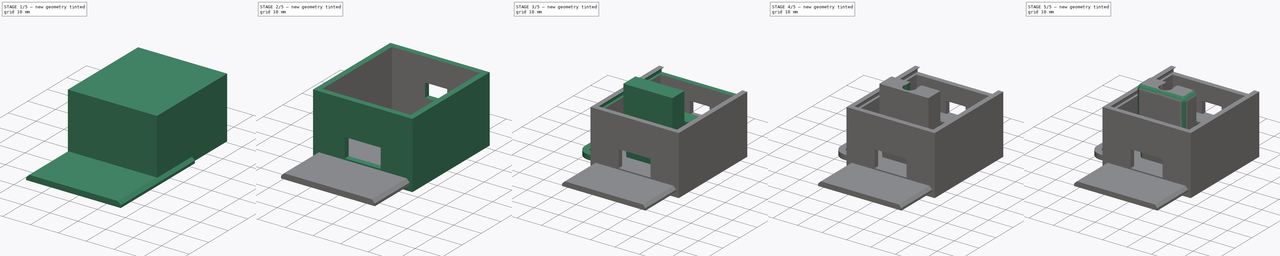
[diagram: build sequence overview — one tinted view per stage of 5, left to right]
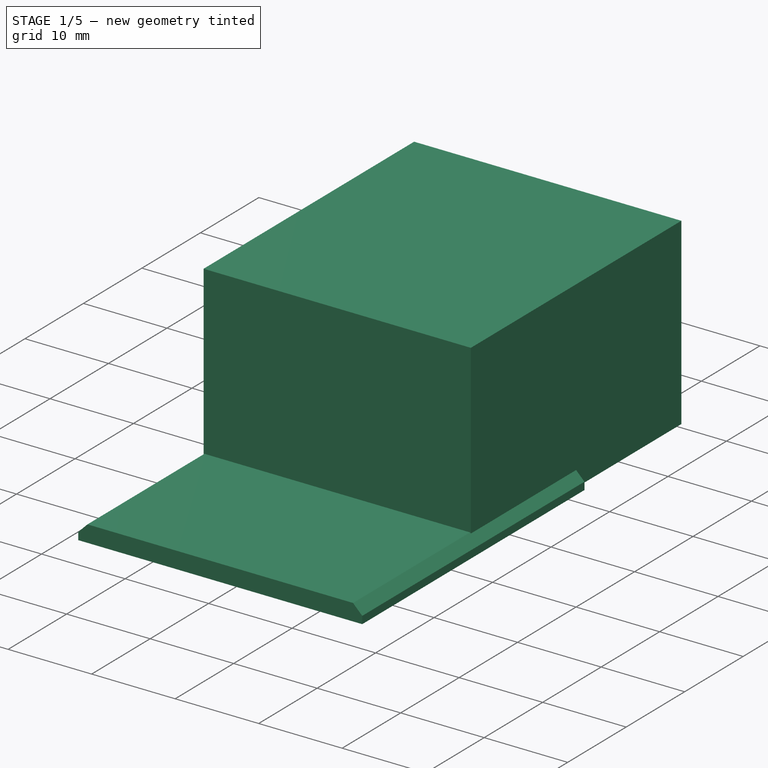
[diagram: stage 1 of 5 — iso view after this stage's code; geometry added in this stage tinted green]
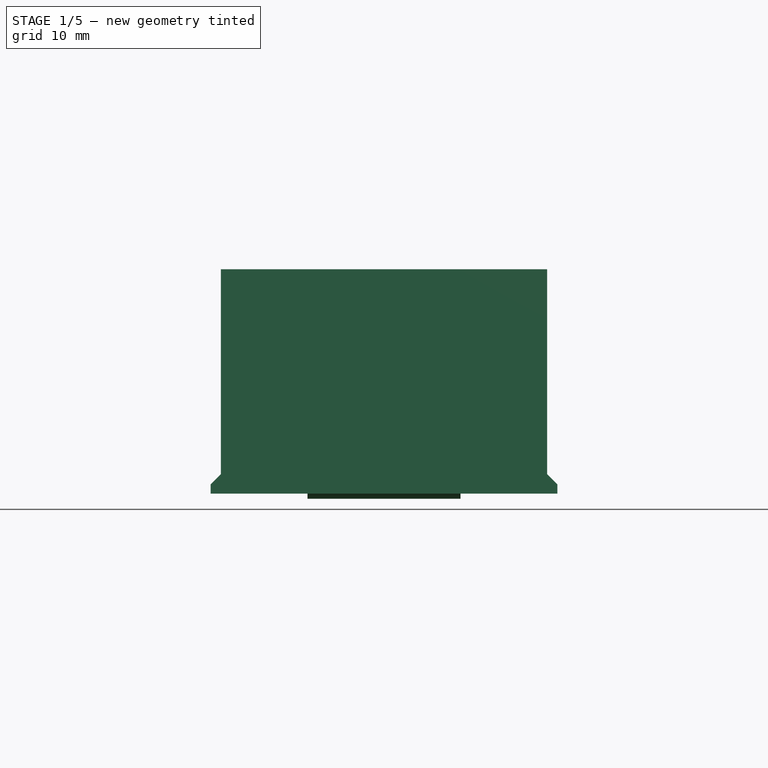
[diagram: stage 1 of 5 — front view after this stage's code; geometry added in this stage tinted green]
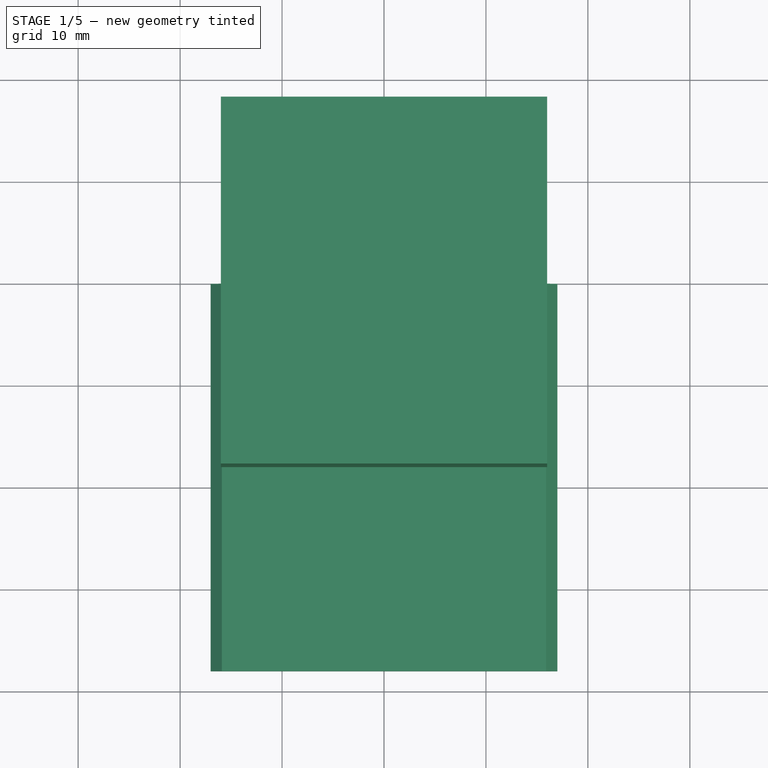
[diagram: stage 1 of 5 — top view after this stage's code; geometry added in this stage tinted green]
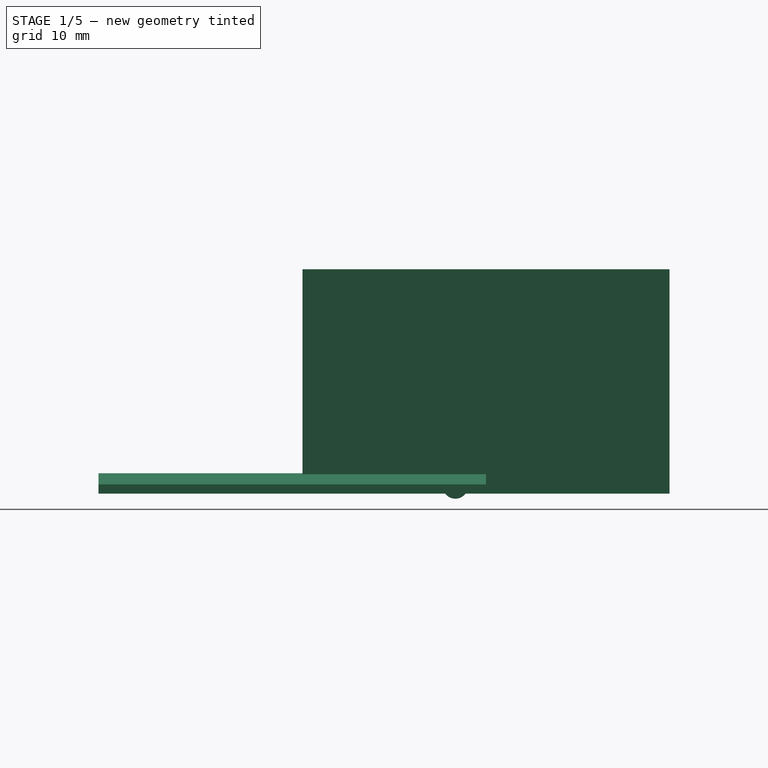
[diagram: stage 1 of 5 — right view after this stage's code; geometry added in this stage tinted green]
FCSTD DOCUMENT  (FreeCAD 1.0R39319 (Git))
Label: Samsung_IR_Holder
License: All rights reserved
LicenseURL: https://en.wikipedia.org/wiki/All_rights_reserved
objects: Sketcher::SketchObject×11, PartDesign::Pocket×6, PartDesign::Pad×5, PartDesign::Body×3, PartDesign::Chamfer×2, PartDesign::Fillet×1, PartDesign::Thickness×1, Measure::MeasureLength×1, App::DocumentObjectGroup×1
note: 70 computed .brp shape members not serialized (recipe doc carries the construction recipe); baked Part::Feature solids carry a one-line shape summary decoded from their .brp

FEATURE [PartDesign::Body] Body
  AllowCompound = false
  Group = -> [Sketch,Pad,Sketch001,Pocket,Sketch002,Pocket001,Sketch003,Pocket002,Fillet,Chamfer,Chamfer001]
  Origin = -> Origin
  Tip = -> Chamfer001
FEATURE [Sketcher::SketchObject] Sketch005
  ArcFitTolerance = 1e-06
  AttachmentSupport = -> [XY_Plane001]
  FullyConstrained = true
  MakeInternals = false
  MapMode = 5
  sketch-geometry (5):
    g0: LineSegment StartX=-16 StartY=-18 StartZ=0 EndX=16 EndY=-18 EndZ=0
    g1: LineSegment StartX=16 StartY=-18 StartZ=0 EndX=16 EndY=18 EndZ=0
    g2: LineSegment StartX=16 StartY=18 StartZ=0 EndX=-16 EndY=18 EndZ=0
    g3: LineSegment StartX=-16 StartY=18 StartZ=0 EndX=-16 EndY=-18 EndZ=0
    g4: GeomPoint [constr] X=0 Y=0 Z=0
  constraints (12):
    c: Coincident(g0,g1)
    c: Coincident(g1,g2)
    c: Coincident(g2,g3)
    c: Coincident(g3,g0)
    c: Horizontal(g0)
    c: Horizontal(g2)
    c: Vertical(g1)
    c: Vertical(g3)
    c: Symmetric(g2,g0,g4)
    c: Distance(g1,g3) = 32
    c: Distance(g0,g2) = 36
    c: Coincident(g4,g-1)
FEATURE [PartDesign::Pad] Pad001
  Direction = (0,0,1)
  Length = 22
  Length2 = 10
  Profile = -> Sketch005
  ReferenceAxis = -> Sketch005 [N_Axis]
  Refine = true
  Suppressed = false
  Type = 0
FEATURE [PartDesign::Body] Body001  label="BoxBody"
  AllowCompound = false
  Group = -> [Sketch005,Pad001,Thickness,Sketch006,Pocket003,Sketch007,Pocket004,Sketch008,Pocket005,Sketch009,Pad002]
  Origin = -> Origin001
  Tip = -> Pad002
FEATURE [Measure::MeasureLength] Length  label="Length: 38,00 mm"
  Elements = -> [Body001]
  Length = 38
FEATURE [App::DocumentObjectGroup] Measurements
  Group = -> [Length]
FEATURE [Sketcher::SketchObject] Sketch010
  ArcFitTolerance = 1e-06
  AttachmentSupport = -> [XZ_Plane002]
  FullyConstrained = true
  MakeInternals = false
  MapMode = 5
  Placement = pos=(0,0,0) rot=(1,0,0;1.5708rad)
  sketch-geometry (8):
    g0: LineSegment StartX=-17 StartY=0 StartZ=0 EndX=17 EndY=0 EndZ=0
    g1: LineSegment StartX=-17 StartY=0 StartZ=0 EndX=-17 EndY=0.9 EndZ=0
    g2: LineSegment StartX=-17 StartY=0.9 StartZ=0 EndX=-15.9 EndY=2 EndZ=0
    g3: LineSegment StartX=-15.9 StartY=2 StartZ=0 EndX=15.9 EndY=2 EndZ=0
    g4: LineSegment StartX=15.9 StartY=2 StartZ=0 EndX=17 EndY=0.9 EndZ=0
    g5: LineSegment StartX=17 StartY=0.9 StartZ=0 EndX=17 EndY=0 EndZ=0
    g6: LineSegment [constr] StartX=-17 StartY=0.9 StartZ=0 EndX=-15.9 EndY=0.9 EndZ=0
    g7: LineSegment [constr] StartX=-15.9 StartY=0.9 StartZ=0 EndX=-15.9 EndY=2 EndZ=0
  constraints (20):
    c: Distance(g0) = 34
    c: PointOnObject(g0,g-1)
    c: Symmetric(g0,g0,g-1)
    c: Coincident(g0,g1)
    c: Vertical(g1)
    c: Coincident(g1,g2)
    c: Coincident(g2,g3)
    c: Coincident(g3,g4)
    c: Coincident(g4,g5)
    c: Coincident(g5,g0)
    c: Symmetric(g1,g4,g-2)
    c: Symmetric(g3,g2,g-2)
    c: DistanceY(g0,g2) = 2
    c: DistanceY(g1,g1) = 0.9
    c: Coincident(g1,g6)
    c: Horizontal(g6)
    c: Coincident(g6,g7)
    c: Coincident(g7,g2)
    c: Vertical(g7)
    c: Equal(g7,g6)
FEATURE [PartDesign::Pad] Pad003
  Direction = (0,-1,2e-16)
  Length = 38
  Length2 = 10
  Placement = pos=(0,0,0) rot=(1,0,0;1.5708rad)
  Profile = -> Sketch010
  ReferenceAxis = -> Sketch010 [N_Axis]
  Refine = true
  Suppressed = false
  Type = 0
FEATURE [Sketcher::SketchObject] Sketch011
  ArcFitTolerance = 1e-06
  AttachmentSupport = -> [YZ_Plane002]
  FullyConstrained = true
  MakeInternals = false
  MapMode = 5
  Placement = pos=(0,0,0) rot=(0.57735,0.57735,0.57735;2.0944rad)
  sketch-geometry (3):
    g0: LineSegment StartX=-4 StartY=0 StartZ=0 EndX=-2 EndY=0 EndZ=0
    g1: ArcOfCircle CenterX=-3 CenterY=0.75 CenterZ=0 NormalX=0 NormalY=0 NormalZ=1 AngleXU=0 Radius=1.25 StartAngle=3.78509 EndAngle=5.63968
    g2: LineSegment [constr] StartX=0 StartY=-0.5 StartZ=0 EndX=-5 EndY=-0.5 EndZ=0
  constraints (11):
    c: Horizontal(g0)
    c: Coincident(g1,g0)
    c: Coincident(g1,g0)
    c: Horizontal(g2)
    c: Tangent(g2,g1)
    c: DistanceX(g0,g0) = 2
    c: DistanceY(g2,g0) = 0.5
    c: DistanceX(g2,g2) = 5
    c: DistanceX(g0,g-1) = 2
    c: PointOnObject(g0,g-1)
    c: PointOnObject(g2,g-2)
FEATURE [PartDesign::Pad] Pad004
  BaseFeature = -> Pad003
  Direction = (1,0,0)
  Length = 15
  Length2 = 10
  Midplane = true
  Placement = pos=(0,0,0) rot=(1,0,0;1.5708rad)
  Profile = -> Sketch011
  ReferenceAxis = -> Sketch011 [N_Axis]
  Refine = true
  Suppressed = false
  Type = 0
FEATURE [PartDesign::Body] Body002  label="CoverBody"
  AllowCompound = false
  Group = -> [Sketch010,Pad003,Sketch011,Pad004]
  Origin = -> Origin002
  Tip = -> Pad004
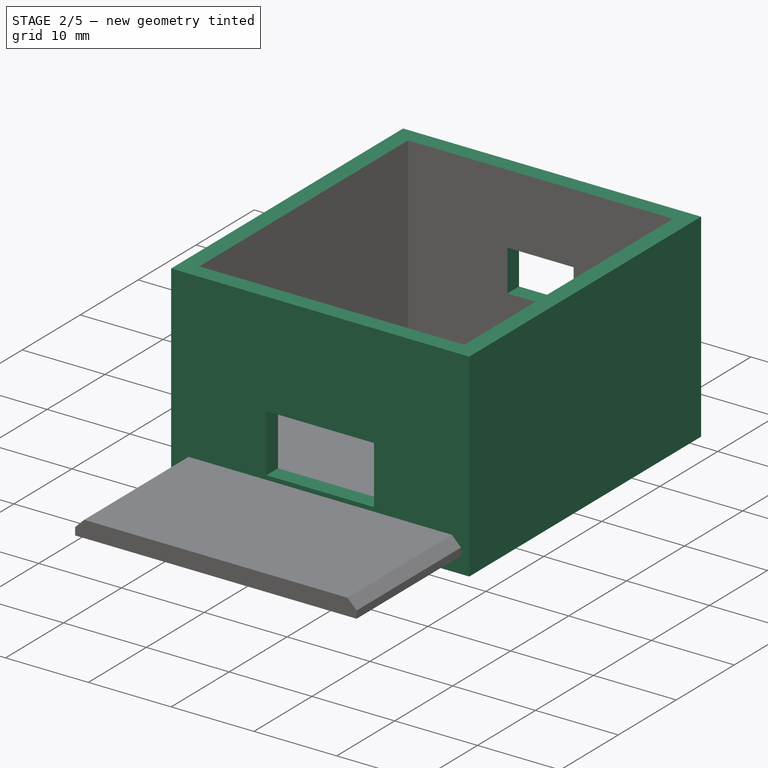
[diagram: stage 2 of 5 — iso view after this stage's code; geometry added in this stage tinted green]
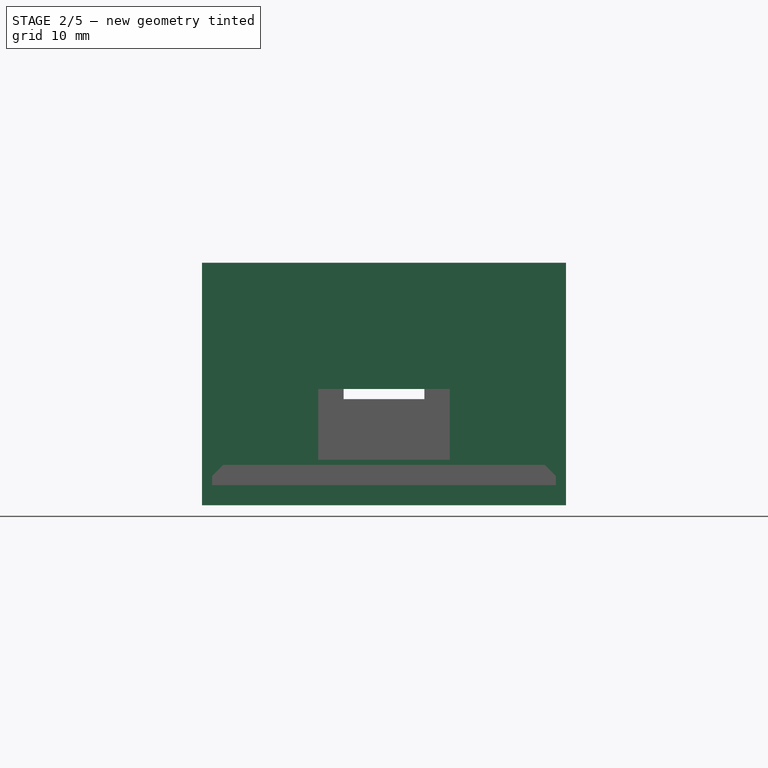
[diagram: stage 2 of 5 — front view after this stage's code; geometry added in this stage tinted green]
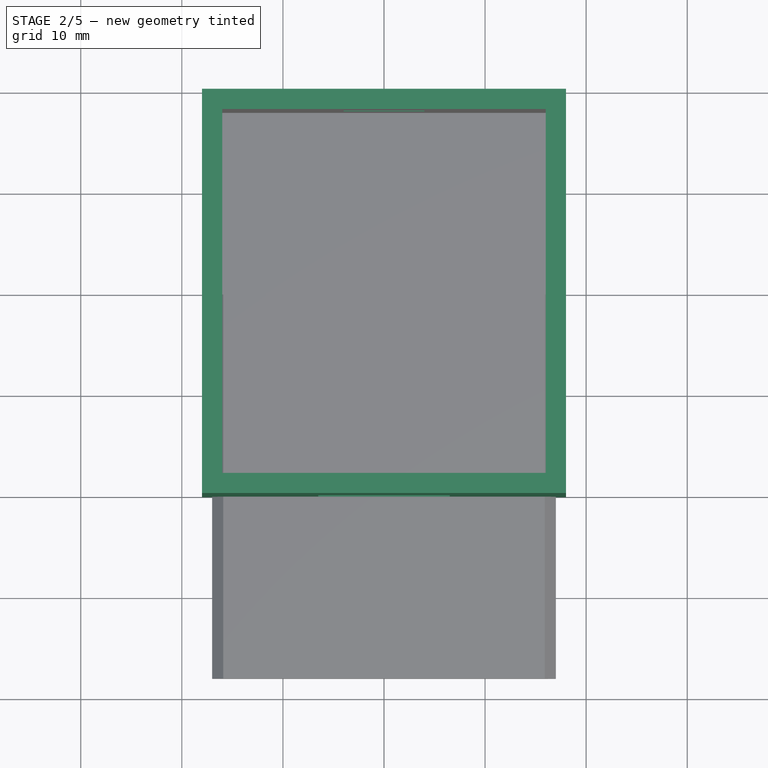
[diagram: stage 2 of 5 — top view after this stage's code; geometry added in this stage tinted green]
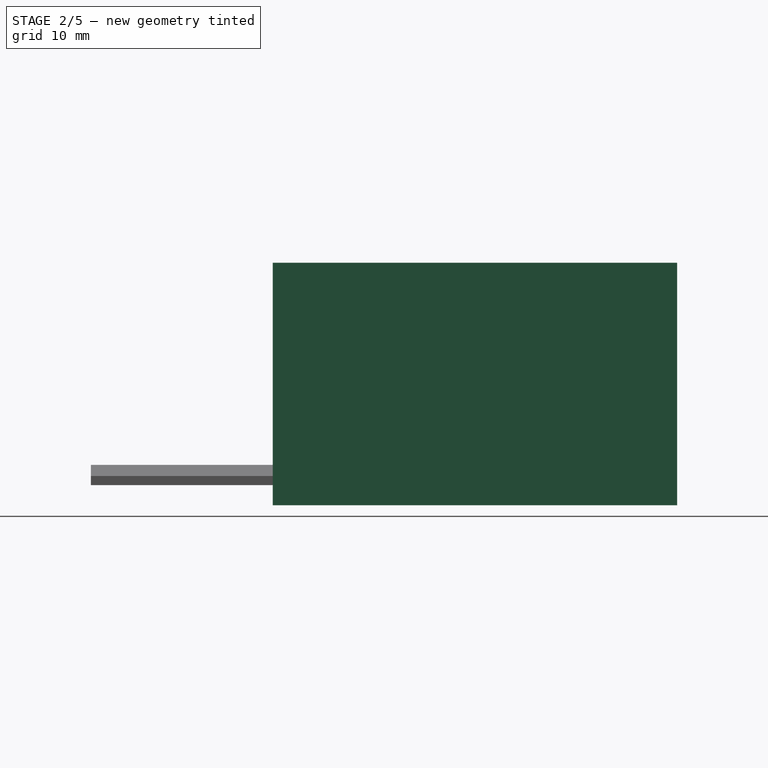
[diagram: stage 2 of 5 — right view after this stage's code; geometry added in this stage tinted green]
FEATURE [PartDesign::Thickness] Thickness
  Base = -> Pad001 [Face6]
  BaseFeature = -> Pad001
  Intersection = false
  Join = 1
  Mode = 0
  Refine = true
  SupportTransform = false
  Suppressed = false
  Value = 2
FEATURE [Sketcher::SketchObject] Sketch006
  ArcFitTolerance = 1e-06
  AttachmentSupport = -> [XZ_Plane001]
  FullyConstrained = true
  MakeInternals = false
  MapMode = 5
  Placement = pos=(0,0,0) rot=(1,0,0;1.5708rad)
  sketch-geometry (5):
    g0: LineSegment StartX=-6.5 StartY=9.5 StartZ=0 EndX=-6.5 EndY=2.5 EndZ=0
    g1: LineSegment StartX=-6.5 StartY=2.5 StartZ=0 EndX=6.5 EndY=2.5 EndZ=0
    g2: LineSegment StartX=6.5 StartY=2.5 StartZ=0 EndX=6.5 EndY=9.5 EndZ=0
    g3: LineSegment StartX=6.5 StartY=9.5 StartZ=0 EndX=-6.5 EndY=9.5 EndZ=0
    g4: GeomPoint [constr] X=0 Y=6 Z=0
  constraints (13):
    c: Coincident(g0,g1)
    c: Coincident(g1,g2)
    c: Coincident(g2,g3)
    c: Coincident(g3,g0)
    c: Vertical(g0)
    c: Vertical(g2)
    c: Horizontal(g1)
    c: Horizontal(g3)
    c: Symmetric(g2,g0,g4)
    c: PointOnObject(g4,g-2)
    c: DistanceY(g2,g2) = 7
    c: DistanceX(g3,g3) = 13
    c: DistanceY(g-1,g4) = 6
FEATURE [PartDesign::Pocket] Pocket003
  BaseFeature = -> Thickness
  Direction = (0,1,-2e-16)
  Length = 5
  Length2 = 5
  Profile = -> Sketch006
  ReferenceAxis = -> Sketch006 [N_Axis]
  Refine = true
  Reversed = true
  Suppressed = false
  Type = 1
FEATURE [Sketcher::SketchObject] Sketch007
  ArcFitTolerance = 1e-06
  AttachmentSupport = -> [XZ_Plane001]
  FullyConstrained = true
  MakeInternals = false
  MapMode = 5
  Placement = pos=(0,0,0) rot=(1,0,0;1.5708rad)
  sketch-geometry (5):
    g0: LineSegment StartX=-4 StartY=8.5 StartZ=0 EndX=4 EndY=8.5 EndZ=0
    g1: LineSegment StartX=4 StartY=8.5 StartZ=0 EndX=4 EndY=13.5 EndZ=0
    g2: LineSegment StartX=4 StartY=13.5 StartZ=0 EndX=-4 EndY=13.5 EndZ=0
    g3: LineSegment StartX=-4 StartY=13.5 StartZ=0 EndX=-4 EndY=8.5 EndZ=0
    g4: GeomPoint [constr] X=0 Y=11 Z=0
  constraints (13):
    c: Coincident(g0,g1)
    c: Coincident(g1,g2)
    c: Coincident(g2,g3)
    c: Coincident(g3,g0)
    c: Horizontal(g0)
    c: Horizontal(g2)
    c: Vertical(g1)
    c: Vertical(g3)
    c: Symmetric(g2,g0,g4)
    c: Distance(g1,g3) = 8
    c: Distance(g0,g2) = 5
    c: PointOnObject(g4,g-2)
    c: DistanceY(g-1,g4) = 11
FEATURE [PartDesign::Pocket] Pocket004
  BaseFeature = -> Pocket003
  Direction = (0,1,-2e-16)
  Length = 5
  Length2 = 5
  Profile = -> Sketch007
  ReferenceAxis = -> Sketch007 [N_Axis]
  Refine = true
  Suppressed = false
  Type = 1
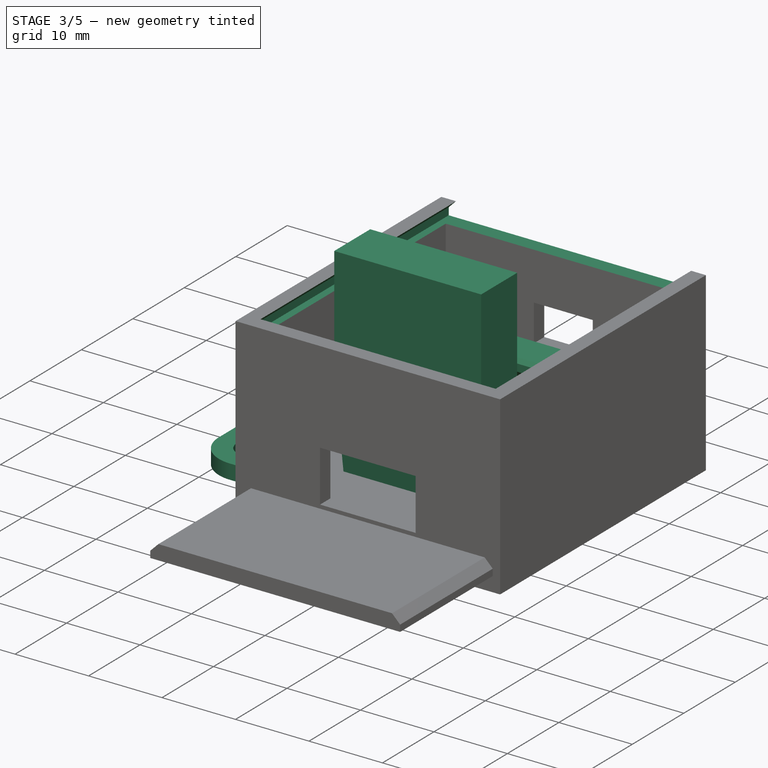
[diagram: stage 3 of 5 — iso view after this stage's code; geometry added in this stage tinted green]
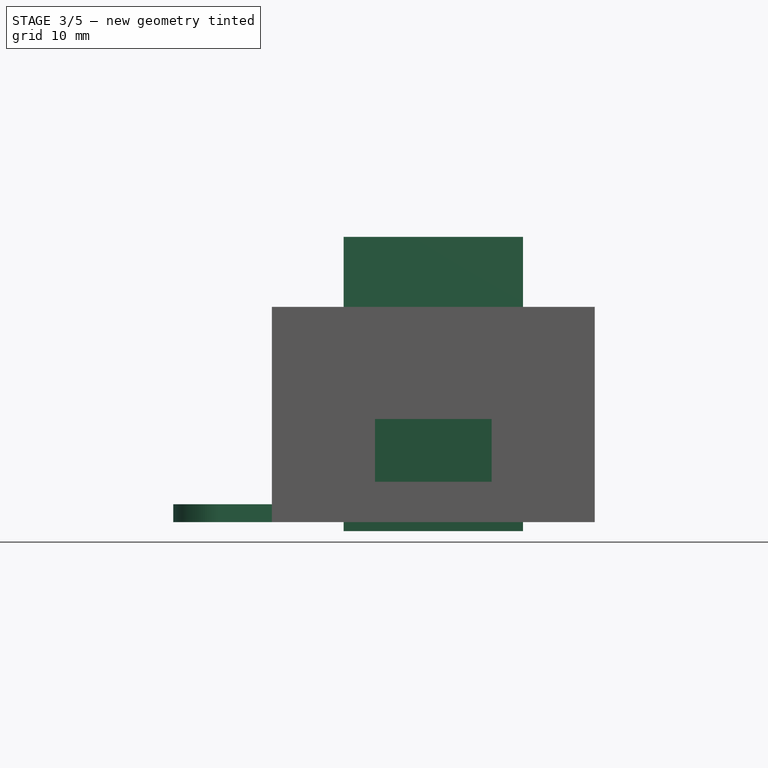
[diagram: stage 3 of 5 — front view after this stage's code; geometry added in this stage tinted green]
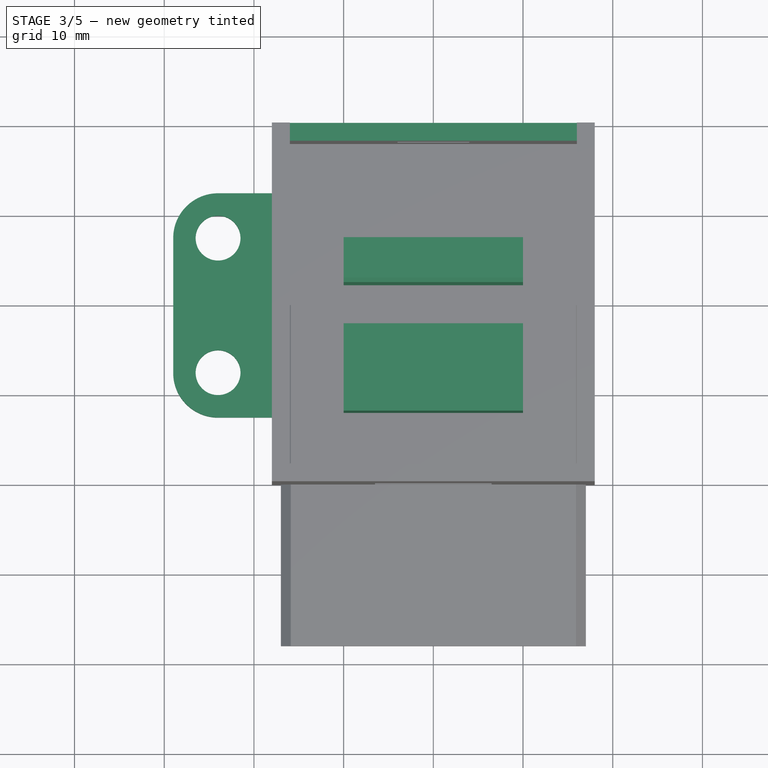
[diagram: stage 3 of 5 — top view after this stage's code; geometry added in this stage tinted green]
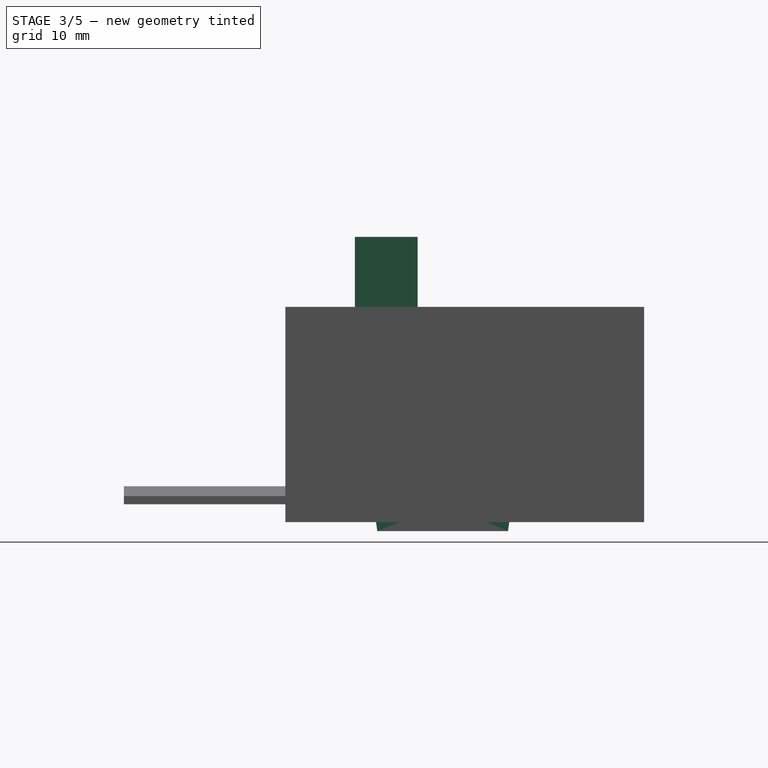
[diagram: stage 3 of 5 — right view after this stage's code; geometry added in this stage tinted green]
FEATURE [Sketcher::SketchObject] Sketch
  ArcFitTolerance = 1e-06
  AttachmentSupport = -> [YZ_Plane]
  FullyConstrained = true
  MakeInternals = false
  MapMode = 5
  Placement = pos=(0,0,0) rot=(0.57735,0.57735,0.57735;2.0944rad)
  sketch-geometry (20):
    g0: LineSegment StartX=-2.25 StartY=14.8 StartZ=0 EndX=-2.25 EndY=0 EndZ=0
    g1: LineSegment StartX=-2.25 StartY=0 StartZ=0 EndX=2.25 EndY=0 EndZ=0
    g2: LineSegment StartX=4.35 StartY=14.8 StartZ=0 EndX=7.35 EndY=14.8 EndZ=0
    g3: LineSegment StartX=7.35 StartY=14.8 StartZ=0 EndX=4.82432 EndY=-3 EndZ=0
    g4: LineSegment StartX=4.82432 StartY=-3 StartZ=0 EndX=-9.74837 EndY=-3 EndZ=0
    g5: LineSegment StartX=-5.25 StartY=14.8 StartZ=0 EndX=-2.25 EndY=14.8 EndZ=0
    g6: LineSegment [constr] StartX=-2.25 StartY=14.8 StartZ=0 EndX=4.35 EndY=14.8 EndZ=0
    g7: LineSegment StartX=4.35 StartY=14.8 StartZ=0 EndX=2.85 EndY=14.8 EndZ=0
    g8: LineSegment StartX=2.25 StartY=0 StartZ=0 EndX=3.91509 EndY=11.7349 EndZ=0
    g9: LineSegment [constr] StartX=3.91509 StartY=11.7349 StartZ=0 EndX=4.35 EndY=14.8 EndZ=0
    g10: LineSegment StartX=2.35 StartY=14.3 StartZ=0 EndX=2.35 EndY=13.3 EndZ=0
    g11: LineSegment StartX=2.35 StartY=13.3 StartZ=0 EndX=3.91509 EndY=11.7349 EndZ=0
    g12: ArcOfCircle [constr] CenterX=2.85 CenterY=14.3 CenterZ=0 NormalX=0 NormalY=0 NormalZ=1 AngleXU=0 Radius=0.5 StartAngle=1.5708 EndAngle=3.14159
    g13: GeomPoint [constr] X=2.35 Y=14.8 Z=0
    g14: LineSegment StartX=2.85 StartY=14.8 StartZ=0 EndX=2.35 EndY=14.3 EndZ=0
    g15: LineSegment StartX=-5.25 StartY=14.8 StartZ=0 EndX=-5.25 EndY=29.8 EndZ=0
    g16: LineSegment StartX=-5.25 StartY=29.8 StartZ=0 EndX=-12.25 EndY=29.8 EndZ=0
    g17: LineSegment [constr] StartX=-5.25 StartY=14.8 StartZ=0 EndX=-12.25 EndY=14.8 EndZ=0
    g18: LineSegment StartX=-12.25 StartY=29.8 StartZ=0 EndX=-12.25 EndY=14.8 EndZ=0
    g19: LineSegment StartX=-12.25 StartY=14.8 StartZ=0 EndX=-9.74837 EndY=-3 EndZ=0
  constraints (53):
    c: Coincident(g0,g1)
    c: Coincident(g1,g8)
    c: Coincident(g9,g2)
    c: Horizontal(g2)
    c: Coincident(g2,g3)
    c: Coincident(g3,g4)
    c: Horizontal(g4)
    c: Coincident(g5,g0)
    c: Horizontal(g5)
    c: Symmetric(g0,g1,g-1)
    c: Horizontal(g1)
    c: Coincident(g6,g0)
    c: Coincident(g6,g9)
    c: Vertical(g0)
    c: DistanceX(g1,g1) = 4.5
    c: DistanceX(g0,g9) = 6.6
    c: Coincident(g9,g7)
    c: Horizontal(g7)
    c: Coincident(g8,g9)
    c: Parallel(g3,g8)
    c: Parallel(g3,g9)
    c: Coincident(g8,g11)
    c: DistanceX(g13,g7) = 2
    c: DistanceY(g1,g2) = 14.8
    c: DistanceX(g2,g2) = 3
    c: DistanceY(g4,g-1) = 3
    c: Horizontal(g6)
    c: Coincident(g10,g11)
    c: Vertical(g10)
    c: DistanceY(g10,g13) = 1.5
    c: Angle(g11,g-1) = 0.785398
    c: PointOnObject(g13,g7)
    c: PointOnObject(g13,g10)
    c: Tangent(g7,g12) = -1.5708
    c: Tangent(g10,g12) = -1.5708
    c: Coincident(g14,g7)
    c: Coincident(g14,g10)
    c: DistanceX(g13,g7) = 0.5
    c: Coincident(g15,g16)
    c: Coincident(g16,g18)
    c: Vertical(g15)
    c: Horizontal(g16)
    c: Distance(g16,g15) = 15
    c: DistanceX(g15,g0) = 3
    c: DistanceX(g16,g16) = 7
    c: Coincident(g19,g4)
    c: Coincident(g5,g15)
    c: Coincident(g17,g5)
    c: Horizontal(g17)
    c: Coincident(g18,g19)
    c: Coincident(g18,g17)
    c: Vertical(g18)
    c: Angle(g4,g19) = 1.71042
FEATURE [PartDesign::Pad] Pad
  Direction = (1,0,0)
  Length = 20
  Length2 = 10
  Midplane = true
  Placement = pos=(0,0,0) rot=(1,1,1;2.0944rad)
  Profile = -> Sketch
  ReferenceAxis = -> Sketch [N_Axis]
  Refine = true
  Suppressed = false
  Type = 0
FEATURE [Sketcher::SketchObject] Sketch008
  ArcFitTolerance = 1e-06
  AttachmentSupport = -> [Pocket004]
  ExternalGeometry = -> [Pocket004]
  FullyConstrained = true
  MakeInternals = false
  MapMode = 5
  Placement = pos=(0,20,0) rot=(0,0.707107,0.707107;3.14159rad)
  sketch-geometry (6):
    g0: LineSegment StartX=-16 StartY=22 StartZ=0 EndX=16 EndY=22 EndZ=0
    g1: LineSegment StartX=16 StartY=22 StartZ=0 EndX=17 EndY=21 EndZ=0
    g2: LineSegment StartX=-17 StartY=21 StartZ=0 EndX=-16 EndY=22 EndZ=0
    g3: LineSegment StartX=-17 StartY=21 StartZ=0 EndX=-17 EndY=20 EndZ=0
    g4: LineSegment StartX=-17 StartY=20 StartZ=0 EndX=17 EndY=20 EndZ=0
    g5: LineSegment StartX=17 StartY=20 StartZ=0 EndX=17 EndY=21 EndZ=0
  constraints (16):
    c: PointOnObject(g0,g-3)
    c: Coincident(g0,g1)
    c: Coincident(g2,g0)
    c: Coincident(g2,g3)
    c: Vertical(g3)
    c: Coincident(g3,g4)
    c: Horizontal(g4)
    c: Coincident(g4,g5)
    c: Coincident(g5,g1)
    c: Vertical(g5)
    c: Symmetric(g0,g0,g-2)
    c: Symmetric(g2,g1,g-2)
    c: DistanceY(g3,g3) = 1
    c: DistanceY(g2,g0) = 1
    c: DistanceX(g-3,g2) = 1
    c: DistanceX(g-3,g0) = 2
FEATURE [PartDesign::Pocket] Pocket005
  BaseFeature = -> Pocket004
  Direction = (0,-1,2e-16)
  Length = 0
  Length2 = 5
  Profile = -> Sketch008
  ReferenceAxis = -> Sketch008 [N_Axis]
  Refine = true
  Suppressed = false
  Type = 3
  UpToFace = -> Pocket004 [Face1]
FEATURE [Sketcher::SketchObject] Sketch009
  ArcFitTolerance = 1e-06
  AttachmentSupport = -> [XY_Plane001]
  FullyConstrained = true
  MakeInternals = false
  MapMode = 5
  sketch-geometry (11):
    g0: LineSegment StartX=-29 StartY=7.5 StartZ=0 EndX=-29 EndY=-7.5 EndZ=0
    g1: LineSegment StartX=-24 StartY=-12.5 StartZ=0 EndX=-14 EndY=-12.5 EndZ=0
    g2: LineSegment StartX=-14 StartY=-12.5 StartZ=0 EndX=-14 EndY=12.5 EndZ=0
    g3: LineSegment StartX=-14 StartY=12.5 StartZ=0 EndX=-24 EndY=12.5 EndZ=0
    g4: GeomPoint [constr] X=-21.5 Y=0 Z=0
    g5: ArcOfCircle CenterX=-24 CenterY=7.5 CenterZ=0 NormalX=0 NormalY=0 NormalZ=1 AngleXU=0 Radius=5 StartAngle=1.5708 EndAngle=3.14159
    g6: GeomPoint [constr] X=-29 Y=12.5 Z=0
    g7: ArcOfCircle CenterX=-24 CenterY=-7.5 CenterZ=0 NormalX=0 NormalY=0 NormalZ=1 AngleXU=0 Radius=5 StartAngle=3.14159 EndAngle=4.71239
    g8: GeomPoint [constr] X=-29 Y=-12.5 Z=0
    g9: Circle CenterX=-24 CenterY=7.5 CenterZ=0 NormalX=0 NormalY=0 NormalZ=1 AngleXU=0 Radius=2.5
    g10: Circle CenterX=-24 CenterY=-7.5 CenterZ=0 NormalX=0 NormalY=0 NormalZ=1 AngleXU=0 Radius=2.5
  constraints (25):
    c: Coincident(g1,g2)
    c: Coincident(g2,g3)
    c: Vertical(g0)
    c: Vertical(g2)
    c: Horizontal(g1)
    c: Horizontal(g3)
    c: Symmetric(g2,g6,g4)
    c: PointOnObject(g4,g-1)
    c: DistanceY(g8,g6) = 25
    c: DistanceX(g6,g3) = 15
    c: PointOnObject(g6,g3)
    c: PointOnObject(g6,g0)
    c: Tangent(g3,g5) = -1.5708
    c: Tangent(g0,g5) = -1.5708
    c: PointOnObject(g8,g0)
    c: PointOnObject(g8,g1)
    c: Tangent(g0,g7) = -1.5708
    c: Tangent(g1,g7) = -1.5708
    c: Radius(g5) = 5
    c: Equal(g5,g7)
    c: Diameter(g9) = 5
    c: Coincident(g9,g5)
    c: Coincident(g10,g7)
    c: Equal(g10,g9)
    c: DistanceX(g5,g-1) = 24
FEATURE [PartDesign::Pad] Pad002
  BaseFeature = -> Pocket005
  Direction = (0,0,1)
  Length = 2
  Length2 = 10
  Profile = -> Sketch009
  ReferenceAxis = -> Sketch009 [N_Axis]
  Refine = true
  Reversed = true
  Suppressed = false
  Type = 0
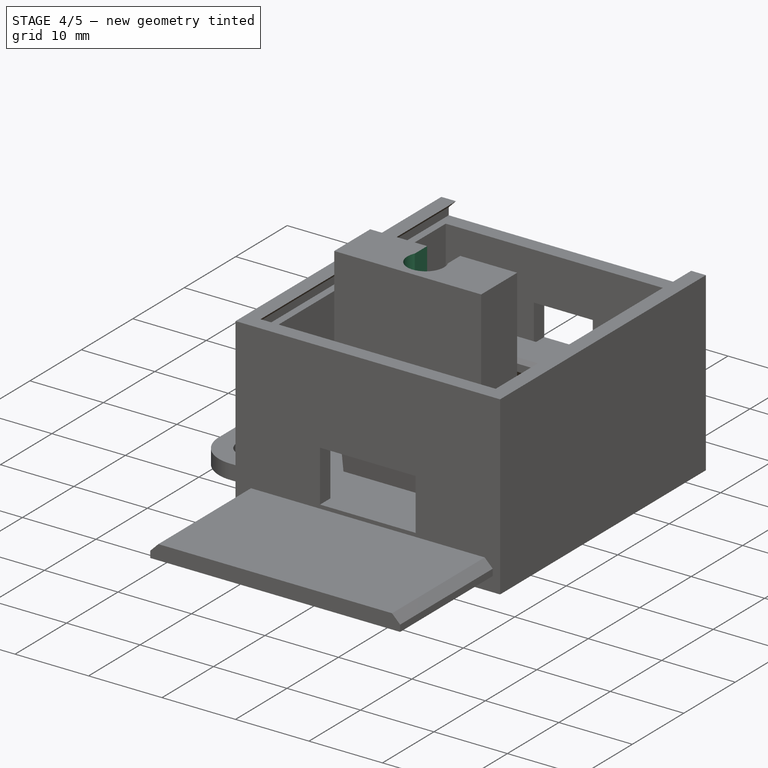
[diagram: stage 4 of 5 — iso view after this stage's code; geometry added in this stage tinted green]
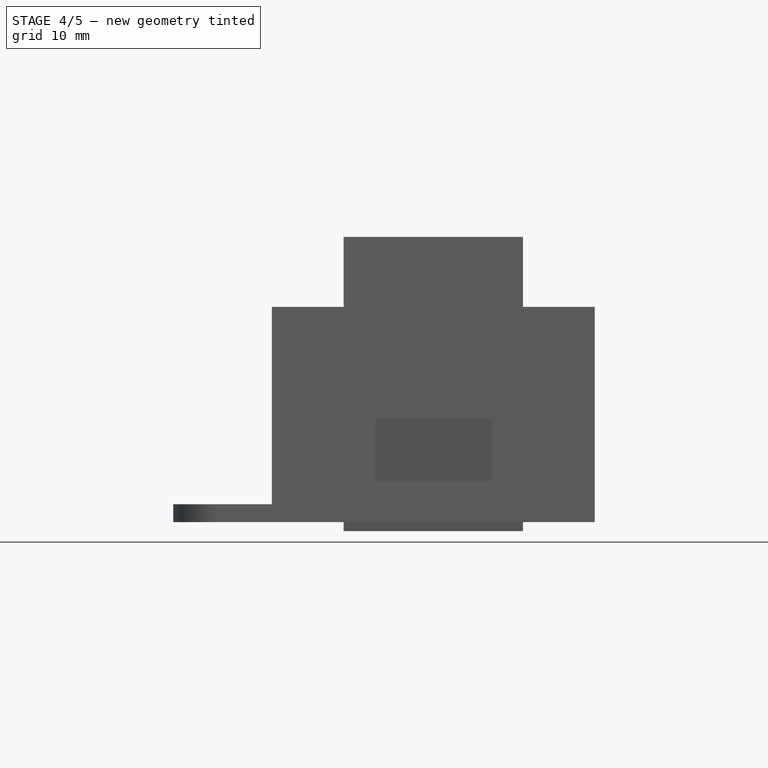
[diagram: stage 4 of 5 — front view after this stage's code; geometry added in this stage tinted green]
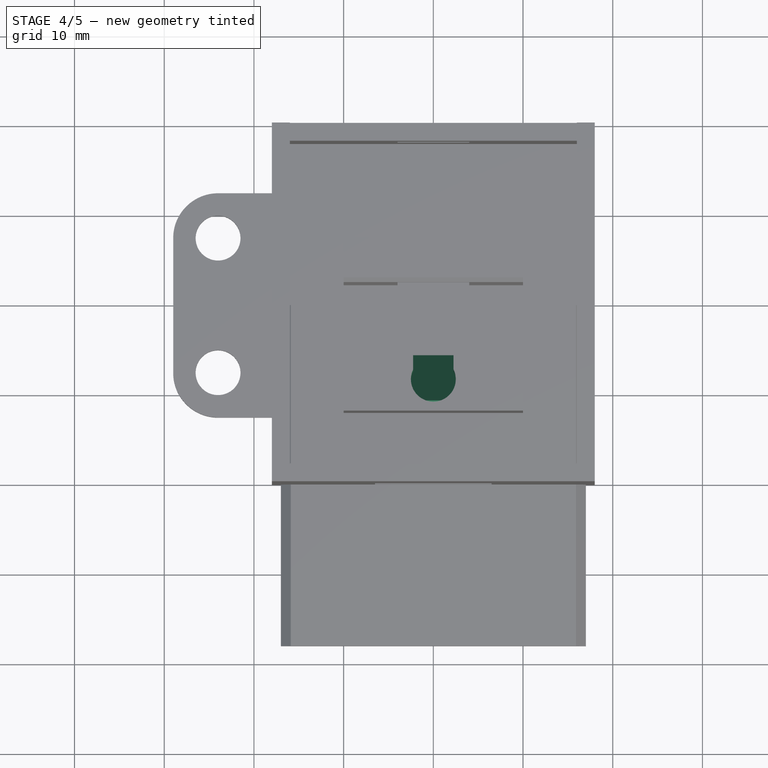
[diagram: stage 4 of 5 — top view after this stage's code; geometry added in this stage tinted green]
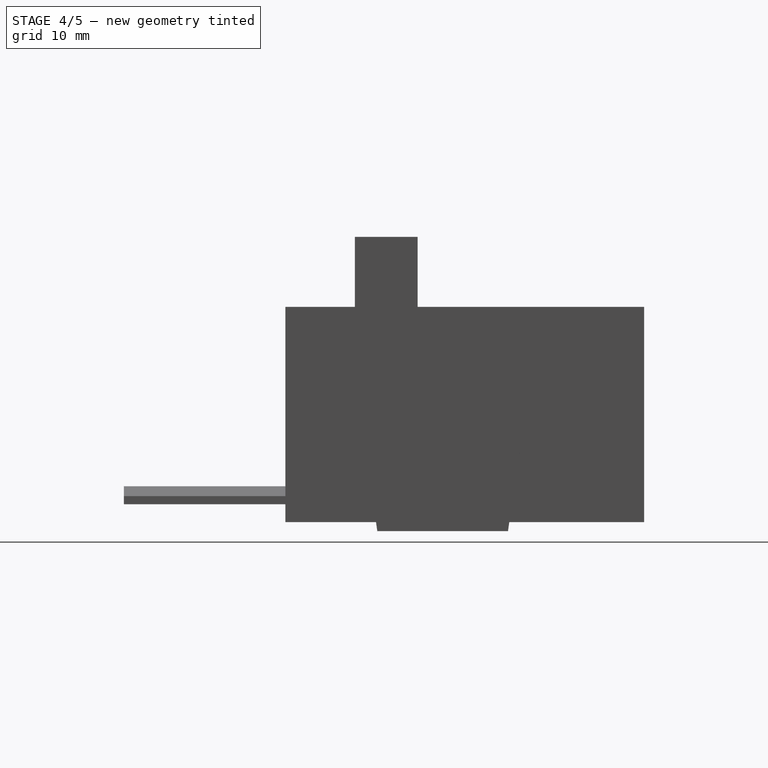
[diagram: stage 4 of 5 — right view after this stage's code; geometry added in this stage tinted green]
FEATURE [Sketcher::SketchObject] Sketch001
  ArcFitTolerance = 1e-06
  AttachmentSupport = -> [Pad]
  ExternalGeometry = -> [Pad]
  FullyConstrained = true
  MakeInternals = false
  MapMode = 5
  Placement = pos=(0,6.6e-15,29.8) rot=(0,0,-1;1.5708rad)
  sketch-geometry (6):
    g0: LineSegment StartX=3.16028 StartY=2.25 StartZ=0 EndX=3.16028 EndY=-2.25 EndZ=0
    g1: LineSegment StartX=3.16028 StartY=-2.25 StartZ=0 EndX=7.66028 EndY=-2.25 EndZ=0
    g2: LineSegment [constr] StartX=7.66028 StartY=-2.25 StartZ=0 EndX=7.66028 EndY=2.25 EndZ=0
    g3: LineSegment StartX=7.66028 StartY=2.25 StartZ=0 EndX=3.16028 EndY=2.25 EndZ=0
    g4: GeomPoint [constr] X=5.41028 Y=-7.4e-15 Z=0
    g5: ArcOfCircle CenterX=8.75 CenterY=-7.6e-15 CenterZ=0 NormalX=0 NormalY=0 NormalZ=1 AngleXU=0 Radius=2.5 StartAngle=4.26136 EndAngle=8.30501
  constraints (15):
    c: Coincident(g0,g1)
    c: Coincident(g1,g2)
    c: Coincident(g2,g3)
    c: Coincident(g3,g0)
    c: Vertical(g0)
    c: Vertical(g2)
    c: Horizontal(g1)
    c: Horizontal(g3)
    c: Symmetric(g2,g0,g4)
    c: Equal(g3,g0)
    c: Coincident(g5,g2)
    c: Coincident(g5,g1)
    c: Diameter(g5) = 5
    c: Symmetric(g-3,g-4,g5)
    c: DistanceY(g0,g0) = 4.5
FEATURE [PartDesign::Pocket] Pocket
  BaseFeature = -> Pad
  Direction = (0,0,-1)
  Length = 14
  Length2 = 5
  Placement = pos=(0,0,0) rot=(1,1,1;2.0944rad)
  Profile = -> Sketch001
  ReferenceAxis = -> Sketch001 [N_Axis]
  Refine = true
  Suppressed = false
  Type = 0
FEATURE [Sketcher::SketchObject] Sketch002
  ArcFitTolerance = 1e-06
  AttachmentOffset = pos=(0,0,-5) rot=(0,0,1;0rad)
  AttachmentSupport = -> [Pad]
  ExternalGeometry = -> [Pad]
  FullyConstrained = true
  MakeInternals = false
  MapMode = 5
  Placement = pos=(0,6.6e-15,24.8) rot=(0,0,-1;1.5708rad)
  sketch-geometry (7):
    g0: GeomPoint X=8.75 Y=-7.3e-15 Z=0
    g1: LineSegment StartX=0.75 StartY=3 StartZ=0 EndX=0.75 EndY=-3 EndZ=0
    g2: LineSegment StartX=0.75 StartY=-3 StartZ=0 EndX=8.75 EndY=-3 EndZ=0
    g3: LineSegment [constr] StartX=8.75 StartY=-3 StartZ=0 EndX=8.75 EndY=3 EndZ=0
    g4: LineSegment StartX=8.75 StartY=3 StartZ=0 EndX=0.75 EndY=3 EndZ=0
    g5: GeomPoint [constr] X=4.75 Y=-7.4e-15 Z=0
    g6: ArcOfCircle CenterX=8.75 CenterY=-7.3e-15 CenterZ=0 NormalX=0 NormalY=0 NormalZ=1 AngleXU=0 Radius=3 StartAngle=4.71239 EndAngle=7.85398
  constraints (16):
    c: Symmetric(g-3,g-4,g0)
    c: Coincident(g1,g2)
    c: Coincident(g2,g3)
    c: Coincident(g3,g4)
    c: Coincident(g4,g1)
    c: Vertical(g1)
    c: Vertical(g3)
    c: Horizontal(g2)
    c: Horizontal(g4)
    c: Symmetric(g3,g1,g5)
    c: PointOnObject(g0,g3)
    c: DistanceY(g3,g3) = 6
    c: Coincident(g6,g3)
    c: Coincident(g6,g2)
    c: Coincident(g6,g0)
    c: DistanceX(g4,g4) = 8
FEATURE [PartDesign::Pocket] Pocket001
  BaseFeature = -> Pocket
  Direction = (0,0,-1)
  Length = 1
  Length2 = -5
  Placement = pos=(0,0,0) rot=(1,1,1;2.0944rad)
  Profile = -> Sketch002
  ReferenceAxis = -> Sketch002 [N_Axis]
  Refine = true
  Suppressed = false
  Type = 0
FEATURE [Sketcher::SketchObject] Sketch003
  ArcFitTolerance = 1e-06
  AttachmentSupport = -> [YZ_Plane]
  ExternalGeometry = -> [Pocket001]
  FullyConstrained = true
  MakeInternals = false
  MapMode = 5
  Placement = pos=(0,0,0) rot=(0.57735,0.57735,0.57735;2.0944rad)
  sketch-geometry (9):
    g0: LineSegment StartX=12.35 StartY=17.5858 StartZ=0 EndX=1.25 EndY=7.61788 EndZ=0
    g1: LineSegment StartX=-1.25 StartY=16.8 StartZ=0 EndX=-11.25 EndY=16.8 EndZ=0
    g2: LineSegment StartX=-11.25 StartY=16.8 StartZ=0 EndX=-4.25 EndY=-1.5 EndZ=0
    g3: LineSegment StartX=-4.25 StartY=-1.5 StartZ=0 EndX=3.75 EndY=-1.5 EndZ=0
    g4: LineSegment StartX=3.75 StartY=-1.5 StartZ=0 EndX=4.45946 EndY=3.5 EndZ=0
    g5: LineSegment StartX=4.45946 StartY=3.5 StartZ=0 EndX=12.35 EndY=10.5858 EndZ=0
    g6: LineSegment StartX=12.35 StartY=10.5858 StartZ=0 EndX=12.35 EndY=17.5858 EndZ=0
    g7: LineSegment StartX=1.25 StartY=7.61788 StartZ=0 EndX=-1.25 EndY=7.61788 EndZ=0
    g8: LineSegment StartX=-1.25 StartY=7.61788 StartZ=0 EndX=-1.25 EndY=16.8 EndZ=0
  constraints (28):
    c: Coincident(g0,g7)
    c: Coincident(g8,g1)
    c: Horizontal(g1)
    c: Coincident(g1,g2)
    c: Coincident(g2,g3)
    c: Horizontal(g3)
    c: Coincident(g3,g4)
    c: Coincident(g4,g5)
    c: Coincident(g5,g6)
    c: Coincident(g6,g0)
    c: Parallel(g-5,g4)
    c: Parallel(g0,g5)
    c: Vertical(g6)
    c: DistanceY(g3,g-4) = 1.5
    c: DistanceX(g-3,g1) = 1
    c: DistanceY(g3,g4) = 5
    c: DistanceY(g6,g6) = 7
    c: Angle(g4,g5) = 2.44346
    c: Coincident(g7,g8)
    c: Vertical(g8)
    c: Horizontal(g7)
    c: DistanceX(g-4,g7) = 1
    c: DistanceX(g-5,g3) = 1.5
    c: DistanceX(g-6,g-6) = 0
    c: DistanceX(g-6,g5) = 5
    c: DistanceX(g0,g-5) = 1
    c: DistanceY(g-4,g1) = 2
    c: DistanceX(g2,g-4) = 2
FEATURE [PartDesign::Pocket] Pocket002
  BaseFeature = -> Pocket001
  Direction = (-1,0,0)
  Length = 8
  Length2 = 5
  Midplane = true
  Placement = pos=(0,0,0) rot=(1,1,1;2.0944rad)
  Profile = -> Sketch003
  ReferenceAxis = -> Sketch003 [N_Axis]
  Refine = true
  Suppressed = false
  Type = 0
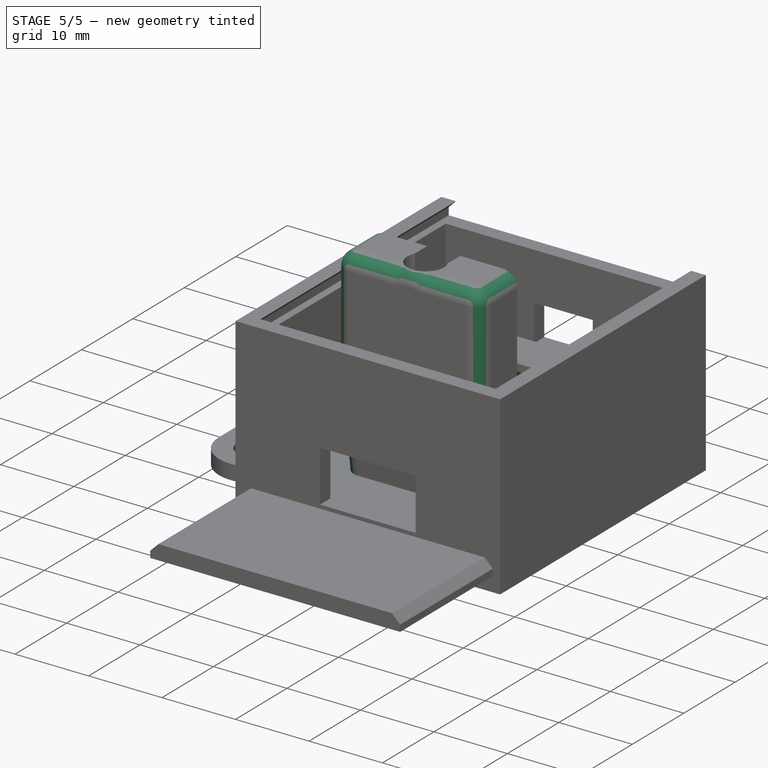
[diagram: stage 5 of 5 — iso view after this stage's code; geometry added in this stage tinted green]
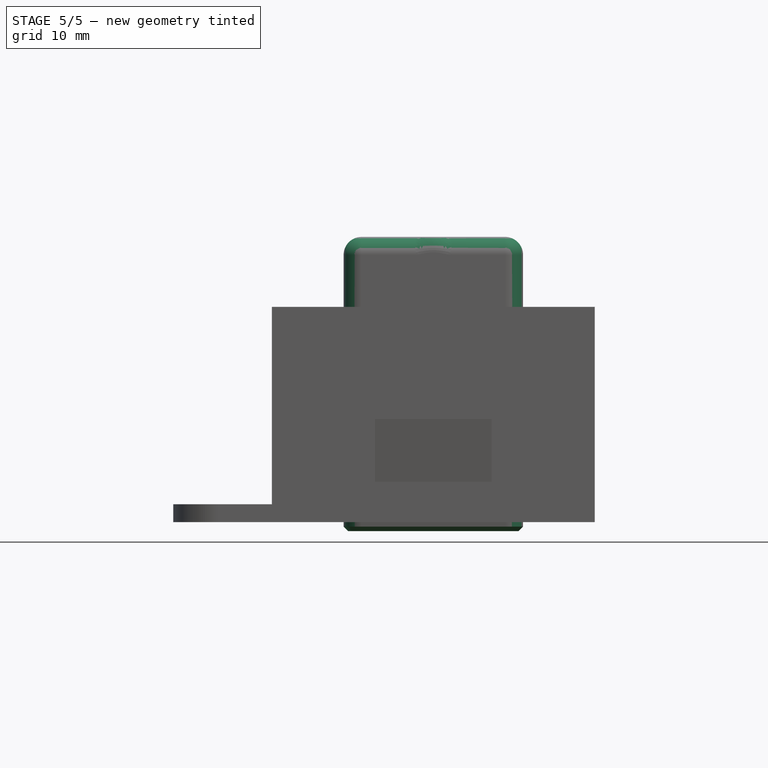
[diagram: stage 5 of 5 — front view after this stage's code; geometry added in this stage tinted green]
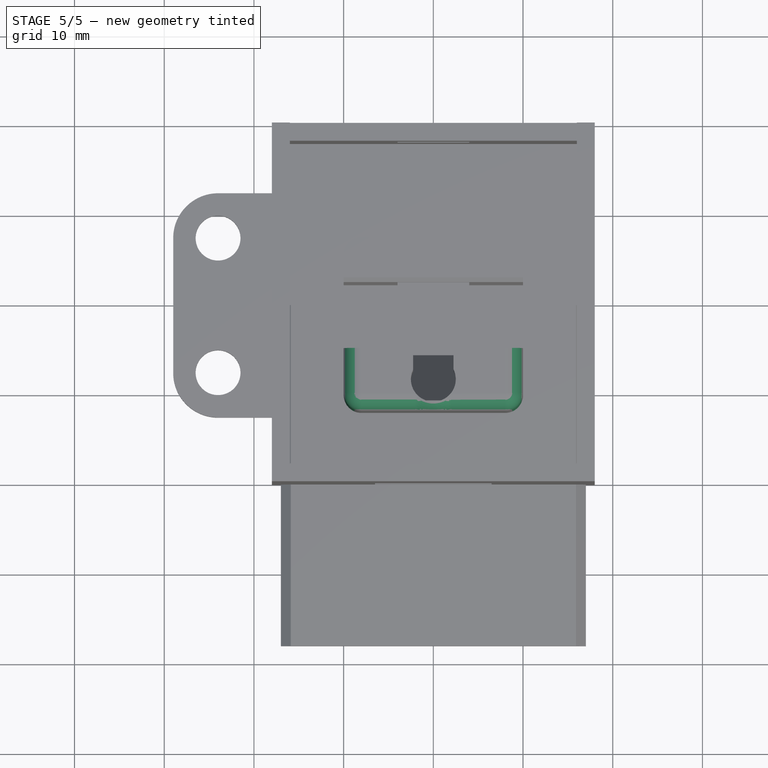
[diagram: stage 5 of 5 — top view after this stage's code; geometry added in this stage tinted green]
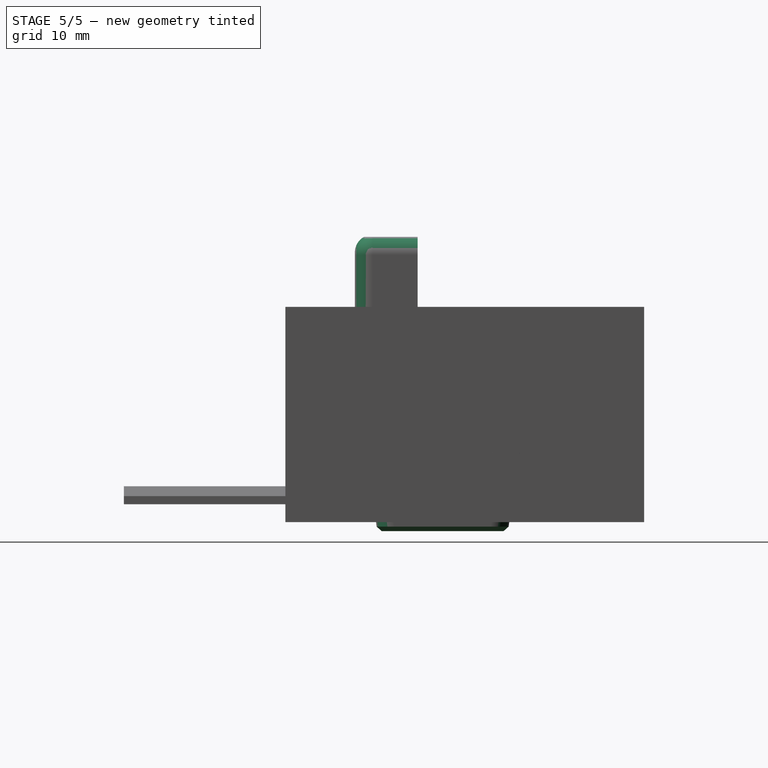
[diagram: stage 5 of 5 — right view after this stage's code; geometry added in this stage tinted green]
FEATURE [PartDesign::Fillet] Fillet
  Base = -> Pocket002 [Edge59,Edge61,Edge62,Edge60,Edge16,Edge15,Edge14,Edge51,Edge12]
  BaseFeature = -> Pocket002
  Placement = pos=(0,0,0) rot=(1,1,1;2.0944rad)
  Radius = 2
  Refine = true
  SupportTransform = false
  Suppressed = false
  UseAllEdges = false
FEATURE [PartDesign::Chamfer] Chamfer
  Angle = 45
  Base = -> Fillet [Face5]
  BaseFeature = -> Fillet
  ChamferType = 0
  FlipDirection = false
  Placement = pos=(0,0,0) rot=(1,1,1;2.0944rad)
  Refine = true
  Size = 0.5
  Size2 = 1
  SupportTransform = false
  Suppressed = false
  UseAllEdges = false
FEATURE [PartDesign::Chamfer] Chamfer001
  Angle = 45
  Base = -> Chamfer [Edge103,Edge110,Edge111]
  BaseFeature = -> Chamfer
  ChamferType = 0
  FlipDirection = false
  Placement = pos=(0,0,0) rot=(1,1,1;2.0944rad)
  Refine = true
  Size = 0.49
  Size2 = 1
  SupportTransform = false
  Suppressed = false
  UseAllEdges = false
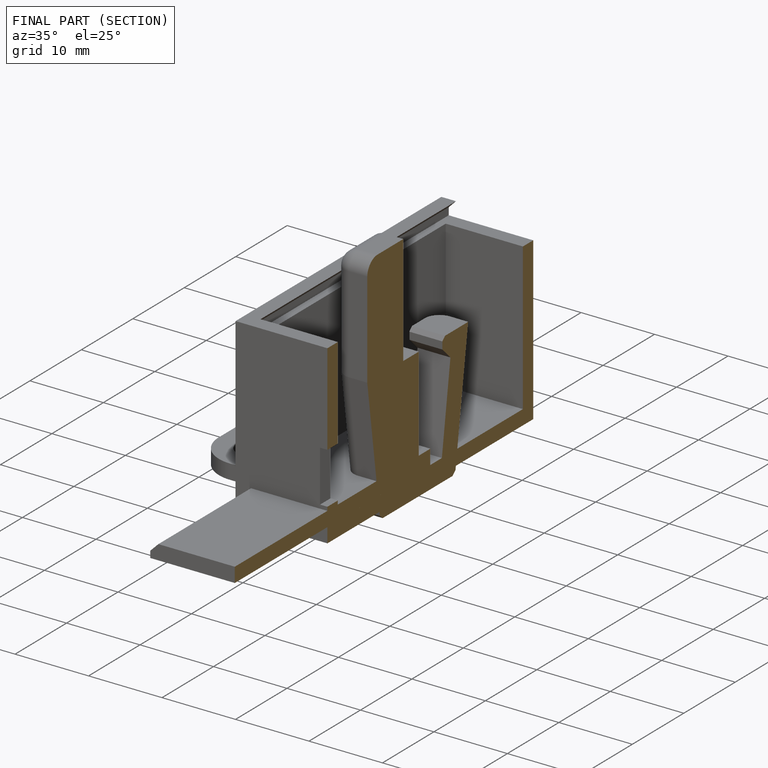
[diagram: finished part — half-section view (interior)]
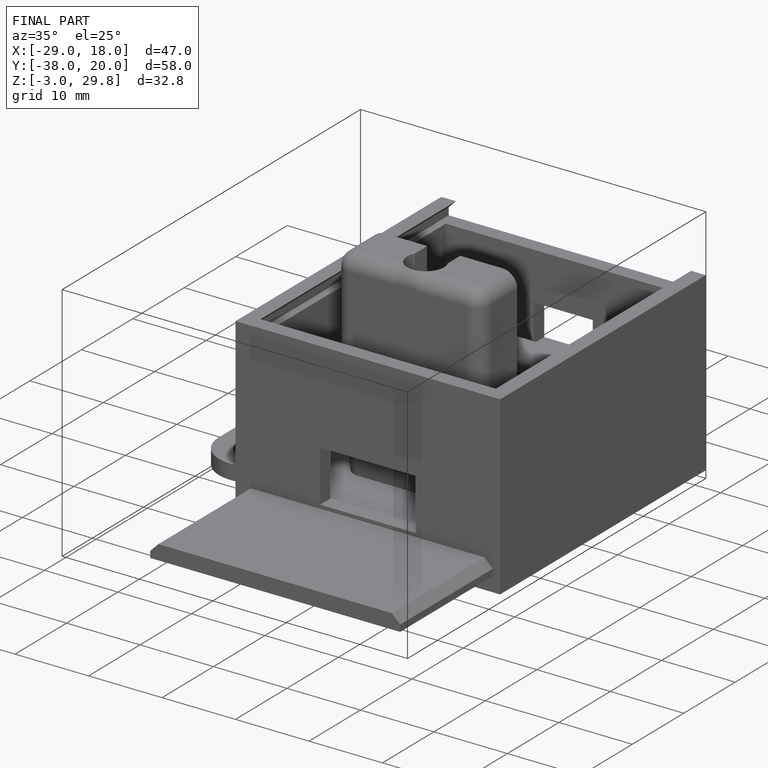
[diagram: finished part — iso view with bounding-box wireframe]
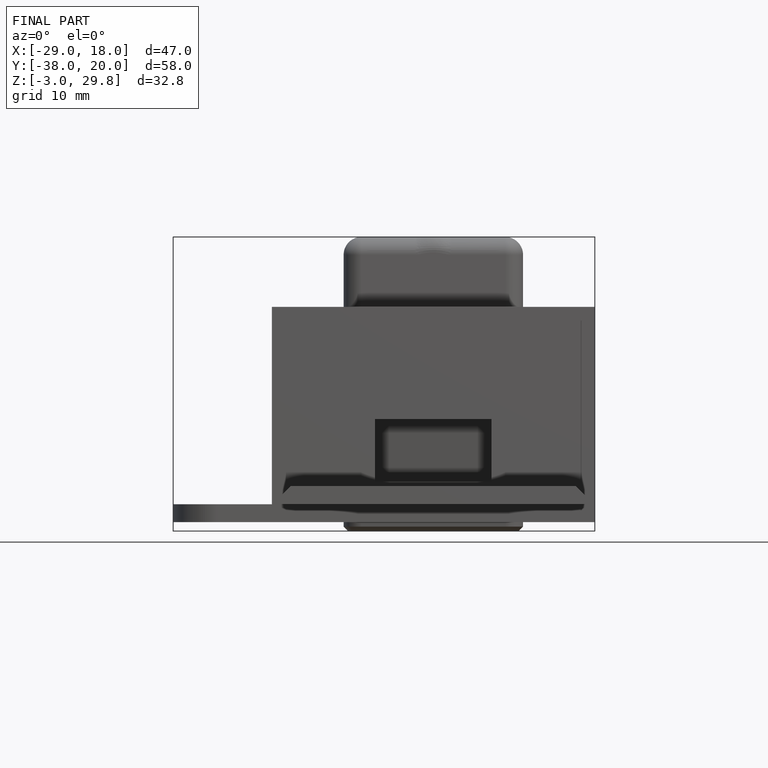
[diagram: finished part — front view with bounding-box wireframe]
